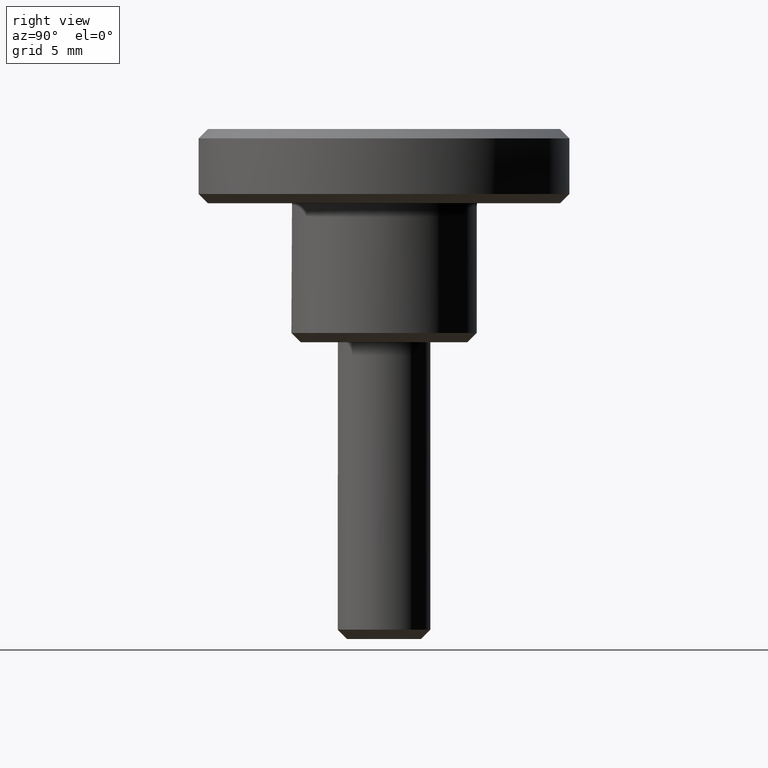
[diagram: clean part render]
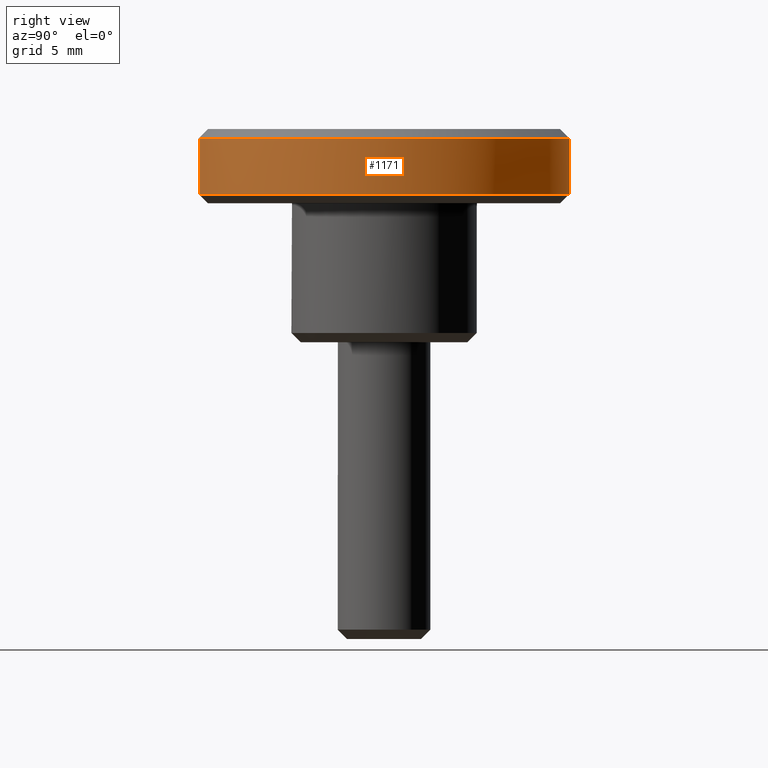
[diagram: same view with one face highlighted and labeled with its STEP entity id]
A machine part, right view. The second image highlights one B-rep face of the part: STEP entity #1171.
In plain terms, the highlighted face is a freeform B-spline surface patch.
Its self-contained STEP definition (entity closure, byte-faithful):
#351=CARTESIAN_POINT('',(1.241277931634470,-9.922662399599856,11.000000000000160));
#352=VERTEX_POINT('',#351);
#368=CARTESIAN_POINT('',(10.0,0.0,11.000000000000121));
#369=VERTEX_POINT('',#368);
#370=CARTESIAN_POINT('',(10.0,0.0,11.000000000000121));
#371=CARTESIAN_POINT('',(10.0,-8.826987874462516,11.000000000000121));
#372=CARTESIAN_POINT('',(1.241277931634471,-9.922662399599856,11.000000000000162));
#380=(BOUNDED_CURVE()B_SPLINE_CURVE(2,(#370,#371,#372),.UNSPECIFIED.,.F.,.U.)B_SPLINE_CURVE_WITH_KNOTS((3,3),(0.500000000000000,0.728526106536804),.UNSPECIFIED.)CURVE()GEOMETRIC_REPRESENTATION_ITEM()RATIONAL_B_SPLINE_CURVE((1.0,0.732265012294119,0.954005499181070))REPRESENTATION_ITEM(''));
#381=EDGE_CURVE('',#369,#352,#380,.T.);
#383=CARTESIAN_POINT('',(-0.087256569852172,9.999619307300673,11.000000000000121));
#384=VERTEX_POINT('',#383);
#385=CARTESIAN_POINT('',(-0.087256569852172,9.999619307300673,11.000000000000124));
#386=CARTESIAN_POINT('',(-0.043629115390380,9.999999999999998,11.000000000000119));
#387=CARTESIAN_POINT('',(0.0,10.0,11.000000000000121));
#388=CARTESIAN_POINT('',(10.000000000000002,10.000000000000002,11.000000000000119));
#389=CARTESIAN_POINT('',(10.0,0.0,11.000000000000121));
#397=(BOUNDED_CURVE()B_SPLINE_CURVE(2,(#385,#386,#387,#388,#389),.UNSPECIFIED.,.F.,.U.)B_SPLINE_CURVE_WITH_KNOTS((3,2,3),(0.248460260414681,0.250000000000000,0.500000000000000),.UNSPECIFIED.)CURVE()GEOMETRIC_REPRESENTATION_ITEM()RATIONAL_B_SPLINE_CURVE((0.996414386234719,0.998196082866885,1.0,0.707106781186548,1.0))REPRESENTATION_ITEM(''));
#398=EDGE_CURVE('',#384,#369,#397,.T.);
#562=CARTESIAN_POINT('',(-0.087256366048750,9.999619309078877,8.000000000000119));
#563=VERTEX_POINT('',#562);
#577=CARTESIAN_POINT('',(10.0,0.0,8.000000000000119));
#578=VERTEX_POINT('',#577);
#579=CARTESIAN_POINT('',(10.0,0.0,8.000000000000119));
#580=CARTESIAN_POINT('',(10.000000000000002,10.000000000000002,8.000000000000119));
#581=CARTESIAN_POINT('',(0.0,10.0,8.000000000000119));
#582=CARTESIAN_POINT('',(-0.043629013482850,10.000000000000002,8.000000000000119));
#583=CARTESIAN_POINT('',(-0.087256366048750,9.999619309078877,8.000000000000119));
#591=(BOUNDED_CURVE()B_SPLINE_CURVE(2,(#579,#580,#581,#582,#583),.UNSPECIFIED.,.F.,.U.)B_SPLINE_CURVE_WITH_KNOTS((3,2,3),(0.500000000000000,0.750000000000000,0.751539735995331),.UNSPECIFIED.)CURVE()GEOMETRIC_REPRESENTATION_ITEM()RATIONAL_B_SPLINE_CURVE((1.0,0.707106781186548,1.0,0.998196087072818,0.996414394542968))REPRESENTATION_ITEM(''));
#592=EDGE_CURVE('',#578,#563,#591,.T.);
#594=CARTESIAN_POINT('',(8.188661127107476,-5.739845724878030,8.000000000000172));
#595=VERTEX_POINT('',#594);
#596=CARTESIAN_POINT('',(8.188661127107476,-5.739845724878030,8.000000000000172));
#597=CARTESIAN_POINT('',(10.0,-3.155727452816878,8.000000000000119));
#598=CARTESIAN_POINT('',(10.0,0.0,8.000000000000119));
#606=(BOUNDED_CURVE()B_SPLINE_CURVE(2,(#596,#597,#598),.UNSPECIFIED.,.F.,.U.)B_SPLINE_CURVE_WITH_KNOTS((3,3),(0.401326273797079,0.500000000000000),.UNSPECIFIED.)CURVE()GEOMETRIC_REPRESENTATION_ITEM()RATIONAL_B_SPLINE_CURVE((0.860049271925847,0.884396538880436,1.0))REPRESENTATION_ITEM(''));
#607=EDGE_CURVE('',#595,#578,#606,.T.);
#645=CARTESIAN_POINT('',(1.241271863740393,-9.922663158659514,8.000000000000119));
#646=VERTEX_POINT('',#645);
#647=CARTESIAN_POINT('',(1.241271863740394,-9.922663158659514,8.000000000000121));
#648=CARTESIAN_POINT('',(5.642648680511572,-9.372074559914664,8.000000000000119));
#649=CARTESIAN_POINT('',(8.188661127107476,-5.739845724878030,8.000000000000172));
#657=(BOUNDED_CURVE()B_SPLINE_CURVE(2,(#647,#648,#649),.UNSPECIFIED.,.F.,.U.)B_SPLINE_CURVE_WITH_KNOTS((3,3),(0.271473790333043,0.401326273797079),.UNSPECIFIED.)CURVE()GEOMETRIC_REPRESENTATION_ITEM()RATIONAL_B_SPLINE_CURVE((0.954005699316995,0.828008796702347,0.860049271925848))REPRESENTATION_ITEM(''));
#658=EDGE_CURVE('',#646,#595,#657,.T.);
#1136=CARTESIAN_POINT('',(1.241280020798293,-9.922662138255385,7.925000000000121));
#1137=CARTESIAN_POINT('',(10.077328305024446,-8.817312581332210,7.925000000000119));
#1138=CARTESIAN_POINT('',(9.999619230641709,0.087265354983739,7.925000000000119));
#1139=CARTESIAN_POINT('',(9.912353875657971,10.086884585625448,7.925000000000118));
#1140=CARTESIAN_POINT('',(-0.087265354983739,9.999619230641709,7.925000000000119));
#1141=CARTESIAN_POINT('',(1.241280020798293,-9.922662138255385,11.076875000000120));
#1142=CARTESIAN_POINT('',(10.077328305024446,-8.817312581332210,11.076875000000122));
#1143=CARTESIAN_POINT('',(9.999619230641709,0.087265354983739,11.076875000000120));
#1144=CARTESIAN_POINT('',(9.912353875657971,10.086884585625448,11.076875000000122));
#1145=CARTESIAN_POINT('',(-0.087265354983739,9.999619230641709,11.076875000000120));
#1153=(BOUNDED_SURFACE()B_SPLINE_SURFACE(2,1,((#1136,#1141),(#1137,#1142),(#1138,#1143),(#1139,#1144),(#1140,#1145)),.UNSPECIFIED.,.F.,.F.,.U.)B_SPLINE_SURFACE_WITH_KNOTS((3,2,3),(2,2),(0.0,15.243059095329890,31.811601590253691),(0.0,3.151875000000003),.UNSPECIFIED.)GEOMETRIC_REPRESENTATION_ITEM()RATIONAL_B_SPLINE_SURFACE(((0.956886118190660,0.956886118190660),(0.730538238691624,0.730538238691624),(1.0,1.0),(0.707106781186548,0.707106781186548),(1.0,1.0)))REPRESENTATION_ITEM('')SURFACE());
#1154=ORIENTED_EDGE('',*,*,#381,.T.);
#1155=CARTESIAN_POINT('',(1.241271863740393,-9.922663158659514,8.000000000000119));
#1156=CARTESIAN_POINT('',(1.241277931634470,-9.922662399599856,11.000000000000160));
#1157=QUASI_UNIFORM_CURVE('',1,(#1155,#1156),.UNSPECIFIED.,.F.,.U.);
#1158=EDGE_CURVE('',#646,#352,#1157,.T.);
#1159=ORIENTED_EDGE('',*,*,#1158,.F.);
#1160=ORIENTED_EDGE('',*,*,#658,.T.);
#1161=ORIENTED_EDGE('',*,*,#607,.T.);
#1162=ORIENTED_EDGE('',*,*,#592,.T.);
#1163=CARTESIAN_POINT('',(-0.087256366048750,9.999619309078877,8.000000000000119));
#1164=CARTESIAN_POINT('',(-0.087256569852172,9.999619307300673,11.000000000000121));
#1165=QUASI_UNIFORM_CURVE('',1,(#1163,#1164),.UNSPECIFIED.,.F.,.U.);
#1166=EDGE_CURVE('',#563,#384,#1165,.T.);
#1167=ORIENTED_EDGE('',*,*,#1166,.T.);
#1168=ORIENTED_EDGE('',*,*,#398,.T.);
#1169=EDGE_LOOP('',(#1154,#1159,#1160,#1161,#1162,#1167,#1168));
#1170=FACE_OUTER_BOUND('',#1169,.T.);
#1171=ADVANCED_FACE('',(#1170),#1153,.T.);